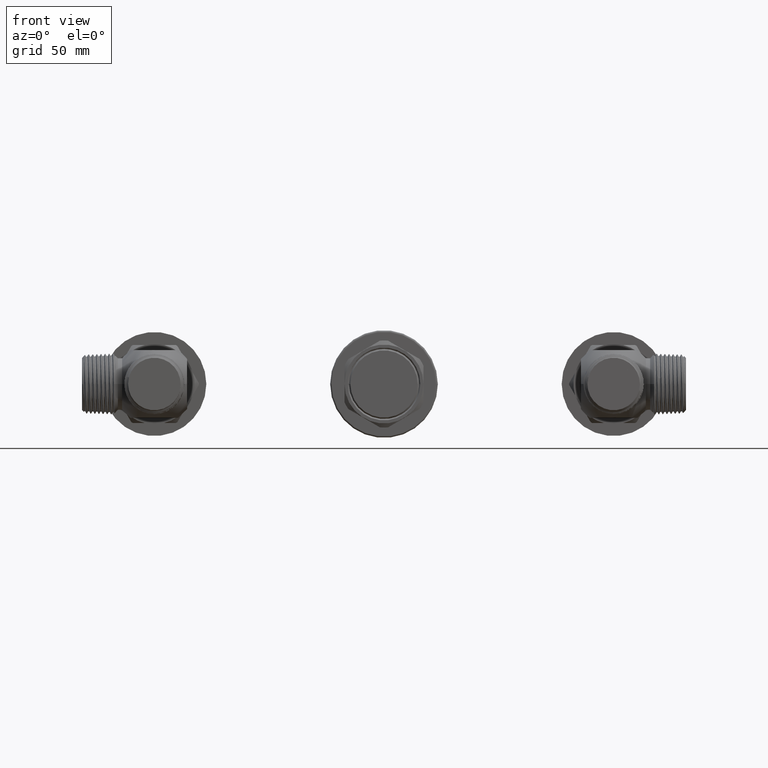
[diagram: clean part render]
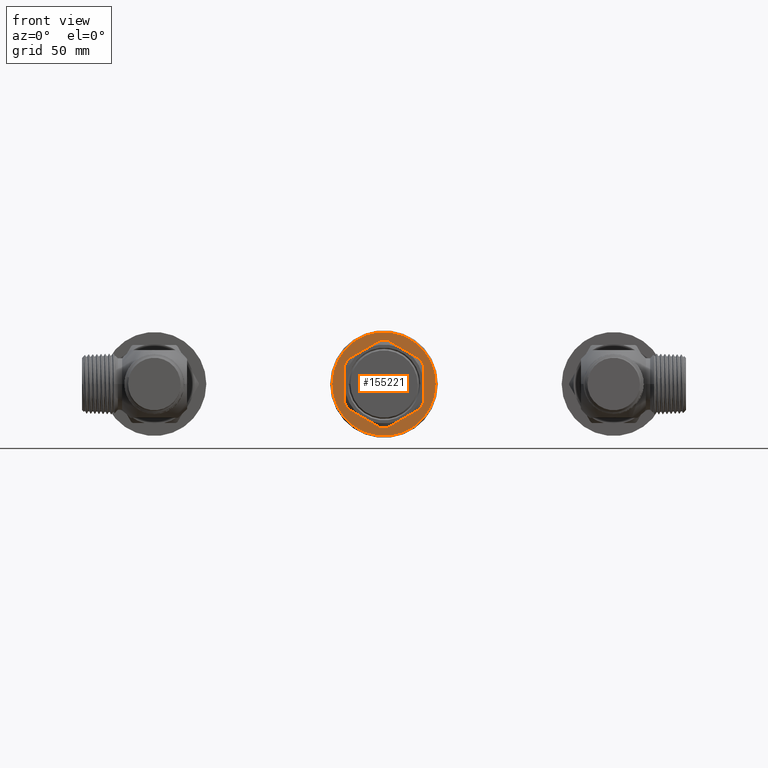
[diagram: same view with one face highlighted and labeled with its STEP entity id]
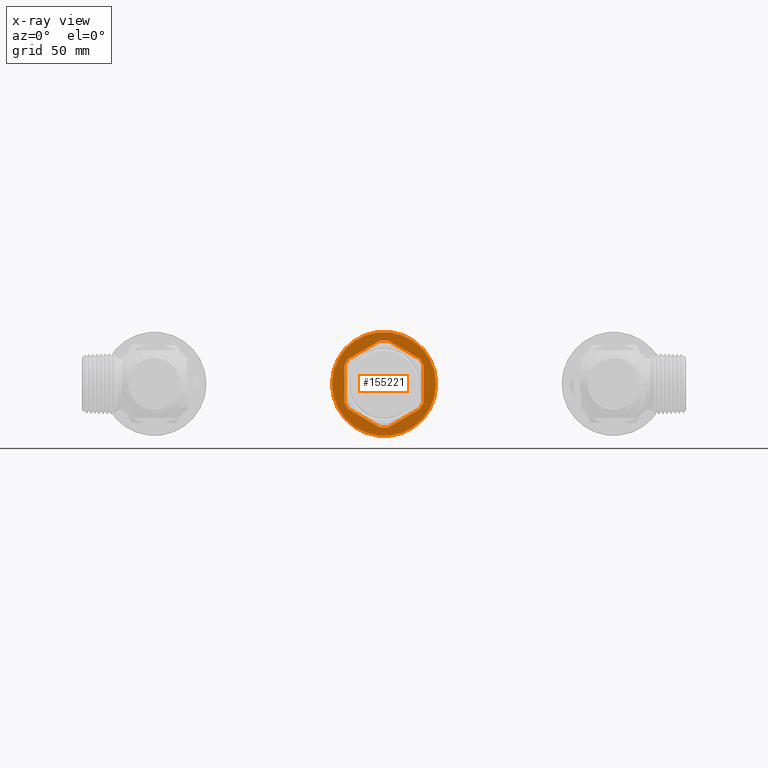
[diagram: x-ray of the same camera — body ghosted, the highlighted face saturated]
A machine part, front view. The second image highlights one B-rep face of the part: STEP entity #155221.
The next image is the same camera in x-ray: the body ghosted, the highlighted face saturated — about 0% of this face is hidden behind the body in this view.
In plain terms, the highlighted planar face has unit normal (0, -1, 0).
Its self-contained STEP definition (entity closure, byte-faithful):
#138180=CARTESIAN_POINT('',(0.E0,-8.08013E-1,0.E0));
#138181=DIRECTION('',(0.E0,-1.E0,0.E0));
#138182=DIRECTION('',(1.E0,0.E0,0.E0));
#138183=AXIS2_PLACEMENT_3D('',#138180,#138181,#138182);
#138204=DIRECTION('',(8.652928618193E-1,0.E0,5.012666588599E-1));
#138205=VECTOR('',#138204,6.346955276514E-1);
#138206=CARTESIAN_POINT('',(-6.196560997439E-1,-8.08013E-1,4.365665104542E-1));
#138207=LINE('',#138206,#138205);
#138211=CARTESIAN_POINT('',(0.E0,-8.08013E-1,0.E0));
#138212=DIRECTION('',(0.E0,-1.E0,0.E0));
#138213=DIRECTION('',(-8.174882582373E-1,0.E0,5.759452644515E-1));
#138214=AXIS2_PLACEMENT_3D('',#138211,#138212,#138213);
#138219=DIRECTION('',(0.E0,0.E0,1.E0));
#138220=VECTOR('',#138219,6.384598656141E-1);
#138221=CARTESIAN_POINT('',(-6.875E-1,-8.08013E-1,-3.192299328071E-1));
#138222=LINE('',#138221,#138220);
#138226=CARTESIAN_POINT('',(0.E0,-8.08013E-1,0.E0));
#138227=DIRECTION('',(0.E0,-1.E0,0.E0));
#138228=DIRECTION('',(-9.069920844327E-1,0.E0,-4.211476686109E-1));
#138229=AXIS2_PLACEMENT_3D('',#138226,#138227,#138228);
#138234=DIRECTION('',(-8.652928618193E-1,0.E0,5.012666588599E-1));
#138235=VECTOR('',#138234,6.346955276514E-1);
#138236=CARTESIAN_POINT('',(-7.045859023853E-2,-8.08013E-1,-7.547182169933E-1));
#138237=LINE('',#138236,#138235);
#138241=DIRECTION('',(-8.652928618193E-1,0.E0,-5.012666588599E-1));
#138242=VECTOR('',#138241,6.346955276514E-1);
#138243=CARTESIAN_POINT('',(6.196560997439E-1,-8.08013E-1,-4.365665104542E-1));
#138244=LINE('',#138243,#138242);
#138248=CARTESIAN_POINT('',(0.E0,-8.08013E-1,0.E0));
#138249=DIRECTION('',(0.E0,-1.E0,0.E0));
#138250=DIRECTION('',(8.174882582373E-1,0.E0,-5.759452644515E-1));
#138251=AXIS2_PLACEMENT_3D('',#138248,#138249,#138250);
#138256=DIRECTION('',(0.E0,0.E0,-1.E0));
#138257=VECTOR('',#138256,6.384598656141E-1);
#138258=CARTESIAN_POINT('',(6.875E-1,-8.08013E-1,3.192299328071E-1));
#138259=LINE('',#138258,#138257);
#138263=CARTESIAN_POINT('',(0.E0,-8.08013E-1,0.E0));
#138264=DIRECTION('',(0.E0,-1.E0,0.E0));
#138265=DIRECTION('',(9.069920844327E-1,0.E0,4.211476686109E-1));
#138266=AXIS2_PLACEMENT_3D('',#138263,#138264,#138265);
#138271=DIRECTION('',(8.652928618193E-1,0.E0,-5.012666588599E-1));
#138272=VECTOR('',#138271,6.346955276514E-1);
#138273=CARTESIAN_POINT('',(7.045859023853E-2,-8.08013E-1,7.547182169933E-1));
#138274=LINE('',#138273,#138272);
#138278=CARTESIAN_POINT('',(0.E0,-8.08013E-1,0.E0));
#138279=DIRECTION('',(0.E0,-1.E0,0.E0));
#138280=DIRECTION('',(-1.E0,0.E0,0.E0));
#138281=AXIS2_PLACEMENT_3D('',#138278,#138279,#138280);
#138421=CARTESIAN_POINT('',(0.E0,-8.08013E-1,0.E0));
#138422=DIRECTION('',(0.E0,1.E0,0.E0));
#138423=DIRECTION('',(9.295328527511E-2,0.E0,-9.956704709675E-1));
#138424=AXIS2_PLACEMENT_3D('',#138421,#138422,#138423);
#138493=CARTESIAN_POINT('',(0.E0,-8.08013E-1,0.E0));
#138494=DIRECTION('',(0.E0,1.E0,0.E0));
#138495=DIRECTION('',(-9.295328527511E-2,0.E0,9.956704709675E-1));
#138496=AXIS2_PLACEMENT_3D('',#138493,#138494,#138495);
#151159=CARTESIAN_POINT('',(7.045859023853E-2,-8.08013E-1,7.547182169933E-1));
#151161=VERTEX_POINT('',#151159);
#151163=CARTESIAN_POINT('',(6.196560997439E-1,-8.08013E-1,4.365665104542E-1));
#151165=VERTEX_POINT('',#151163);
#151167=CARTESIAN_POINT('',(6.875E-1,-8.08013E-1,3.192299328071E-1));
#151169=VERTEX_POINT('',#151167);
#151171=CARTESIAN_POINT('',(6.875E-1,-8.08013E-1,-3.192299328071E-1));
#151173=VERTEX_POINT('',#151171);
#151175=CARTESIAN_POINT('',(6.196560997439E-1,-8.08013E-1,-4.365665104542E-1));
#151177=VERTEX_POINT('',#151175);
#151179=CARTESIAN_POINT('',(7.045859023853E-2,-8.08013E-1,-7.547182169933E-1));
#151181=VERTEX_POINT('',#151179);
#151183=CARTESIAN_POINT('',(-7.045859023853E-2,-8.08013E-1,-7.547182169933E-1));
#151185=VERTEX_POINT('',#151183);
#151187=CARTESIAN_POINT('',(-6.196560997439E-1,-8.08013E-1,-4.365665104542E-1));
#151189=VERTEX_POINT('',#151187);
#151191=CARTESIAN_POINT('',(-6.875E-1,-8.08013E-1,-3.192299328071E-1));
#151193=VERTEX_POINT('',#151191);
#151195=CARTESIAN_POINT('',(-6.875E-1,-8.08013E-1,3.192299328071E-1));
#151197=VERTEX_POINT('',#151195);
#151199=CARTESIAN_POINT('',(-6.196560997439E-1,-8.08013E-1,4.365665104542E-1));
#151201=VERTEX_POINT('',#151199);
#151203=CARTESIAN_POINT('',(-7.045859023853E-2,-8.08013E-1,7.547182169933E-1));
#151205=VERTEX_POINT('',#151203);
#151206=CARTESIAN_POINT('',(9.0625E-1,-8.08013E-1,0.E0));
#151207=CARTESIAN_POINT('',(-9.0625E-1,-8.08013E-1,0.E0));
#151208=VERTEX_POINT('',#151206);
#151209=VERTEX_POINT('',#151207);
#155185=CARTESIAN_POINT('',(0.E0,-8.08013E-1,0.E0));
#155186=DIRECTION('',(0.E0,-1.E0,0.E0));
#155187=DIRECTION('',(1.E0,0.E0,0.E0));
#155188=AXIS2_PLACEMENT_3D('',#155185,#155186,#155187);
#155189=PLANE('',#155188);
#155190=ORIENTED_EDGE('',*,*,#155168,.F.);
#155192=ORIENTED_EDGE('',*,*,#155191,.F.);
#155193=EDGE_LOOP('',(#155190,#155192));
#155194=FACE_OUTER_BOUND('',#155193,.F.);
#155196=ORIENTED_EDGE('',*,*,#155195,.F.);
#155198=ORIENTED_EDGE('',*,*,#155197,.T.);
#155200=ORIENTED_EDGE('',*,*,#155199,.F.);
#155202=ORIENTED_EDGE('',*,*,#155201,.T.);
#155204=ORIENTED_EDGE('',*,*,#155203,.F.);
#155206=ORIENTED_EDGE('',*,*,#155205,.F.);
#155208=ORIENTED_EDGE('',*,*,#155207,.F.);
#155210=ORIENTED_EDGE('',*,*,#155209,.T.);
#155212=ORIENTED_EDGE('',*,*,#155211,.F.);
#155214=ORIENTED_EDGE('',*,*,#155213,.T.);
#155216=ORIENTED_EDGE('',*,*,#155215,.F.);
#155218=ORIENTED_EDGE('',*,*,#155217,.F.);
#155219=EDGE_LOOP('',(#155196,#155198,#155200,#155202,#155204,#155206,#155208,
#155210,#155212,#155214,#155216,#155218));
#155220=FACE_BOUND('',#155219,.F.);
#138184=CIRCLE('',#138183,9.0625E-1);
#138215=CIRCLE('',#138214,7.58E-1);
#138230=CIRCLE('',#138229,7.58E-1);
#138252=CIRCLE('',#138251,7.58E-1);
#138267=CIRCLE('',#138266,7.58E-1);
#138282=CIRCLE('',#138281,9.0625E-1);
#138425=CIRCLE('',#138424,7.58E-1);
#138497=CIRCLE('',#138496,7.58E-1);
#155168=EDGE_CURVE('',#151208,#151209,#138184,.T.);
#155191=EDGE_CURVE('',#151209,#151208,#138282,.T.);
#155195=EDGE_CURVE('',#151201,#151205,#138207,.T.);
#155197=EDGE_CURVE('',#151201,#151197,#138215,.T.);
#155199=EDGE_CURVE('',#151193,#151197,#138222,.T.);
#155201=EDGE_CURVE('',#151193,#151189,#138230,.T.);
#155203=EDGE_CURVE('',#151185,#151189,#138237,.T.);
#155205=EDGE_CURVE('',#151181,#151185,#138425,.T.);
#155207=EDGE_CURVE('',#151177,#151181,#138244,.T.);
#155209=EDGE_CURVE('',#151177,#151173,#138252,.T.);
#155211=EDGE_CURVE('',#151169,#151173,#138259,.T.);
#155213=EDGE_CURVE('',#151169,#151165,#138267,.T.);
#155215=EDGE_CURVE('',#151161,#151165,#138274,.T.);
#155217=EDGE_CURVE('',#151205,#151161,#138497,.T.);
#155221=ADVANCED_FACE('',(#155194,#155220),#155189,.T.);